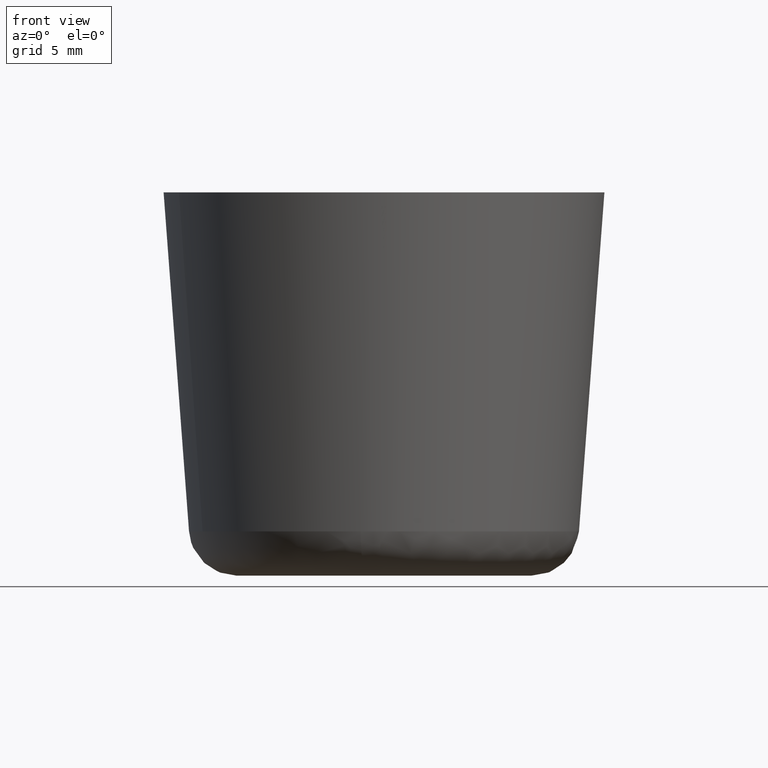
[diagram: clean part render]
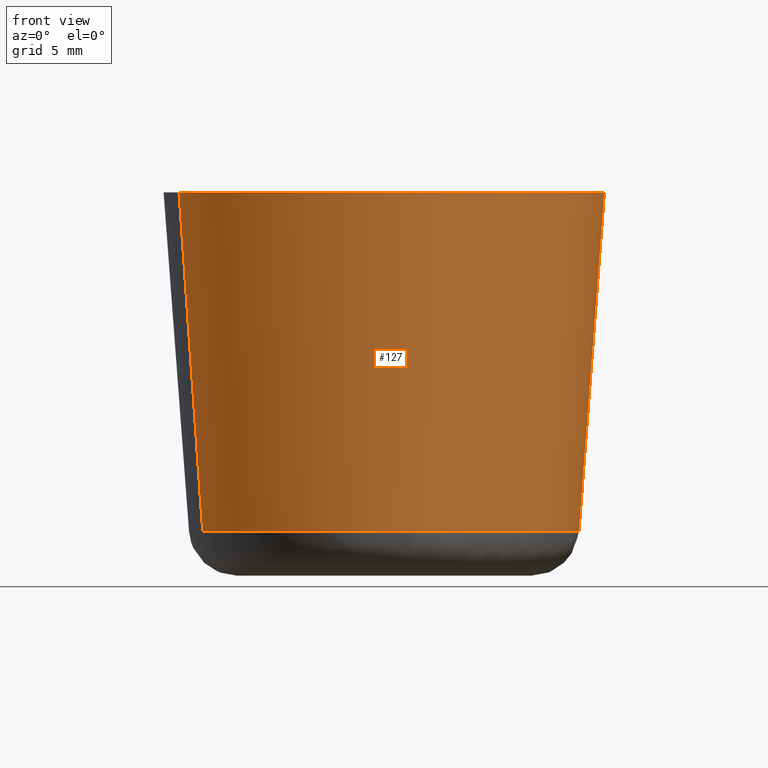
[diagram: same view with one face highlighted and labeled with its STEP entity id]
A machine part, front view. The second image highlights one B-rep face of the part: STEP entity #127.
In plain terms, the highlighted face is a freeform B-spline surface patch.
Its self-contained STEP definition (entity closure, byte-faithful):
#127=ADVANCED_FACE('',(#289),#288,.T.);
#288=( BOUNDED_SURFACE() B_SPLINE_SURFACE( 2,1,((#467,#468),(#469,#470),(#471,#472),(#473,#474),(#475,#476)), .UNSPECIFIED.,.F.,.F.,.F.) B_SPLINE_SURFACE_WITH_KNOTS((3,2,3),(2,2),(0.00000000000E+000,5.00000000000E-001,1.00000000000E+000),(0.00000000000E+000,1.00000000000E+000), .UNSPECIFIED. ) GEOMETRIC_REPRESENTATION_ITEM() RATIONAL_B_SPLINE_SURFACE(((1.00000000000E+000,1.00000000000E+000),(7.07106781187E-001,7.07106781187E-001),(1.00000000000E+000,1.00000000000E+000),(7.07106781187E-001,7.07106781187E-001),(1.00000000000E+000,1.00000000000E+000))) REPRESENTATION_ITEM('') SURFACE() );
#289=FACE_OUTER_BOUND('',#477,.T.);
#467=CARTESIAN_POINT('',(-9.45995415082E+000,-3.74284634184E+000,2.31302303713E+000));
#468=CARTESIAN_POINT('',(-1.06934899282E+001,-4.23089679096E+000,2.00007040567E+001));
#469=CARTESIAN_POINT('',(-5.71710780897E+000,-1.32028004927E+001,2.31302303713E+000));
#470=CARTESIAN_POINT('',(-6.46259313725E+000,-1.49243867192E+001,2.00007040567E+001));
#471=CARTESIAN_POINT('',(3.74284634184E+000,-9.45995415082E+000,2.31302303713E+000));
#472=CARTESIAN_POINT('',(4.23089679096E+000,-1.06934899282E+001,2.00007040567E+001));
#473=CARTESIAN_POINT('',(1.32028004927E+001,-5.71710780897E+000,2.31302303713E+000));
#474=CARTESIAN_POINT('',(1.49243867192E+001,-6.46259313725E+000,2.00007040567E+001));
#475=CARTESIAN_POINT('',(9.45995415082E+000,3.74284634184E+000,2.31302303713E+000));
#476=CARTESIAN_POINT('',(1.06934899282E+001,4.23089679096E+000,2.00007040567E+001));
#477=EDGE_LOOP('',(#589,#590,#591,#592,#593,#594,#595,#596,#597));
#589=ORIENTED_EDGE('',*,*,#661,.F.);
#590=ORIENTED_EDGE('',*,*,#669,.F.);
#591=ORIENTED_EDGE('',*,*,#668,.F.);
#592=ORIENTED_EDGE('',*,*,#667,.F.);
#593=ORIENTED_EDGE('',*,*,#672,.T.);
#594=ORIENTED_EDGE('',*,*,#637,.T.);
#595=ORIENTED_EDGE('',*,*,#636,.T.);
#596=ORIENTED_EDGE('',*,*,#635,.T.);
#597=ORIENTED_EDGE('',*,*,#673,.F.);
#635=EDGE_CURVE('',#794,#786,#795,.T.);
#636=EDGE_CURVE('',#801,#794,#802,.T.);
#637=EDGE_CURVE('',#808,#801,#809,.T.);
#661=EDGE_CURVE('',#968,#975,#976,.T.);
#667=EDGE_CURVE('',#1009,#1016,#1017,.T.);
#668=EDGE_CURVE('',#1016,#1023,#1024,.T.);
#669=EDGE_CURVE('',#1023,#968,#1030,.T.);
#672=EDGE_CURVE('',#1009,#808,#1048,.T.);
#673=EDGE_CURVE('',#975,#786,#1054,.T.);
#786=VERTEX_POINT('',#1152);
#794=VERTEX_POINT('',#1158);
#795=CIRCLE('',#1162,1.14999998104E+001);
#801=VERTEX_POINT('',#1163);
#802=CIRCLE('',#1167,1.14999999128E+001);
#808=VERTEX_POINT('',#1168);
#809=CIRCLE('',#1172,1.15000000000E+001);
#968=VERTEX_POINT('',#1282);
#975=VERTEX_POINT('',#1286);
#976=CIRCLE('',#1290,1.01734767553E+001);
#1009=VERTEX_POINT('',#1311);
#1016=VERTEX_POINT('',#1316);
#1017=CIRCLE('',#1320,1.01734771779E+001);
#1023=VERTEX_POINT('',#1321);
#1024=CIRCLE('',#1325,1.01734768925E+001);
#1030=CIRCLE('',#1329,1.01734767553E+001);
#1048=(BOUNDED_CURVE() B_SPLINE_CURVE(1,(#1334,#1335),.UNSPECIFIED.,.F.,.F.) B_SPLINE_CURVE_WITH_KNOTS((2,2),(1.11759708952E-007,9.99960194532E-001),.UNSPECIFIED.) CURVE() GEOMETRIC_REPRESENTATION_ITEM() RATIONAL_B_SPLINE_CURVE((1.00000000000E+000,1.00000000000E+000)) REPRESENTATION_ITEM('') );
#1054=(BOUNDED_CURVE() B_SPLINE_CURVE(1,(#1336,#1337),.UNSPECIFIED.,.F.,.F.) B_SPLINE_CURVE_WITH_KNOTS((2,2),(0.00000000000E+000,1.00000000000E+000),.UNSPECIFIED.) CURVE() GEOMETRIC_REPRESENTATION_ITEM() RATIONAL_B_SPLINE_CURVE((7.50000000000E-001,7.50000000000E-001)) REPRESENTATION_ITEM('') );
#1152=CARTESIAN_POINT('',(-1.06934422203E+001,-4.23087354541E+000,1.99999985370E+001));
#1158=CARTESIAN_POINT('',(9.02272999601E-001,-1.14645497568E+001,1.99999986623E+001));
#1159=CARTESIAN_POINT('',(-4.89422493644E-008,-9.33971655570E-008,1.99999985997E+001));
#1160=DIRECTION('',(7.78055514388E-009,-4.85368885071E-009,-1.00000000000E+000));
#1161=DIRECTION('',(-7.84585272538E-002,9.96917378473E-001,-5.44917766278E-009));
#1162=AXIS2_PLACEMENT_3D('',#1159,#1160,#1161);
#1163=CARTESIAN_POINT('',(1.15000000000E+001,0.00000000000E+000,2.00000000000E+001));
#1164=CARTESIAN_POINT('',(8.72392584839E-008,1.99946725843E-008,1.99999993312E+001));
#1165=DIRECTION('',(5.81598499702E-008,6.29169347822E-008,-1.00000000000E+000));
#1166=DIRECTION('',(-1.00000000000E+000,1.73866719443E-009,-5.81598498608E-008));
#1167=AXIS2_PLACEMENT_3D('',#1164,#1165,#1166);
#1168=CARTESIAN_POINT('',(1.06934397582E+001,4.23088006655E+000,2.00000000000E+001));
#1169=CARTESIAN_POINT('',(0.00000000000E+000,0.00000000000E+000,2.00000000000E+001));
#1170=DIRECTION('',(-0.00000000000E+000,-2.18447646426E-016,-1.00000000000E+000));
#1171=DIRECTION('',(1.00000000000E+000,-0.00000000000E+000,-0.00000000000E+000));
#1172=AXIS2_PLACEMENT_3D('',#1169,#1170,#1171);
#1282=CARTESIAN_POINT('',(-1.21844866371E+000,-1.01002482553E+001,2.31302330606E+000));
#1286=CARTESIAN_POINT('',(-9.45995617532E+000,-3.74284122495E+000,2.31302303713E+000));
#1287=CARTESIAN_POINT('',(-5.50580416814E-008,-1.25686817398E-007,2.31302319410E+000));
#1288=DIRECTION('',(2.20297066969E-008,-1.37426461922E-008,-1.00000000000E+000));
#1289=DIRECTION('',(-7.84582949810E-002,9.96917396753E-001,-1.54286962928E-008));
#1290=AXIS2_PLACEMENT_3D('',#1287,#1288,#1289);
#1311=CARTESIAN_POINT('',(9.45995309711E+000,3.74284941412E+000,2.31302499921E+000));
#1316=CARTESIAN_POINT('',(1.01734770000E+001,0.00000000000E+000,2.31302500000E+000));
#1317=CARTESIAN_POINT('',(-1.77886848363E-007,-2.49968055144E-008,2.31302498874E+000));
#1318=DIRECTION('',(1.10665356318E-009,-1.15877479212E-016,-1.00000000000E+000));
#1319=DIRECTION('',(-1.19767199517E-001,-9.92802003382E-001,-1.32540683054E-010));
#1320=AXIS2_PLACEMENT_3D('',#1317,#1318,#1319);
#1321=CARTESIAN_POINT('',(7.98193585195E-001,-1.01421160886E+001,2.31302335106E+000));
#1322=CARTESIAN_POINT('',(1.07539634975E-007,2.46474023413E-008,2.31302417553E+000));
#1323=DIRECTION('',(8.10410284543E-008,8.76696194477E-008,-1.00000000000E+000));
#1324=DIRECTION('',(-1.00000000000E+000,2.42271178299E-009,-8.10410282419E-008));
#1325=AXIS2_PLACEMENT_3D('',#1322,#1323,#1324);
#1326=CARTESIAN_POINT('',(-5.50580416814E-008,-1.25686817398E-007,2.31302319410E+000));
#1327=DIRECTION('',(2.20297066969E-008,-1.37426461922E-008,-1.00000000000E+000));
#1328=DIRECTION('',(-7.84582949810E-002,9.96917396753E-001,-1.54286962928E-008));
#1329=AXIS2_PLACEMENT_3D('',#1326,#1327,#1328);
#1334=CARTESIAN_POINT('',(9.45995415082E+000,3.74284634184E+000,2.31302303713E+000));
#1335=CARTESIAN_POINT('',(1.06934408267E+001,4.23087736388E+000,1.99999999902E+001));
#1336=CARTESIAN_POINT('',(-9.45995415082E+000,-3.74284634184E+000,2.31302303713E+000));
#1337=CARTESIAN_POINT('',(-1.06934899282E+001,-4.23089679096E+000,2.00007040567E+001));